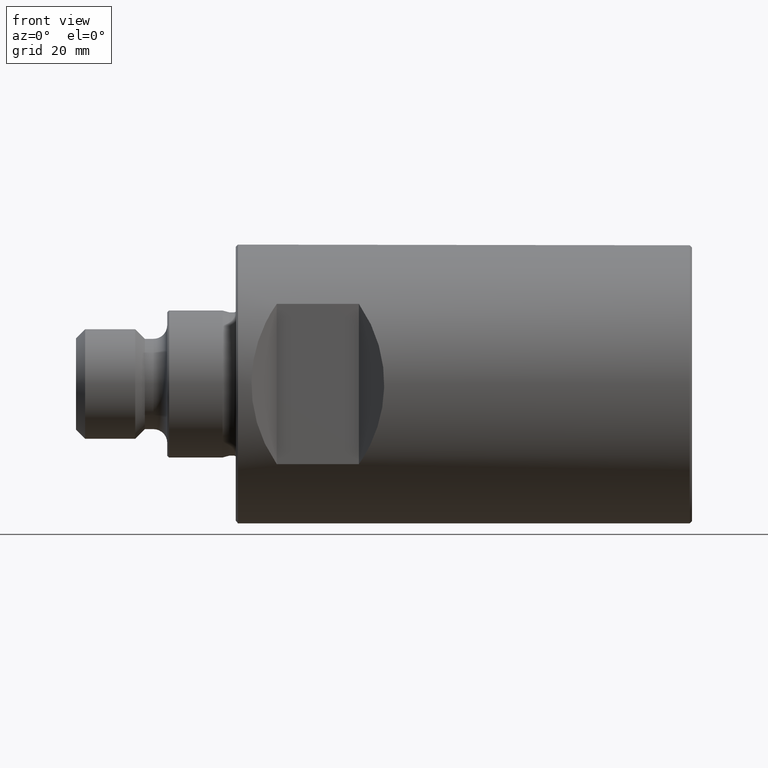
[diagram: clean part render]
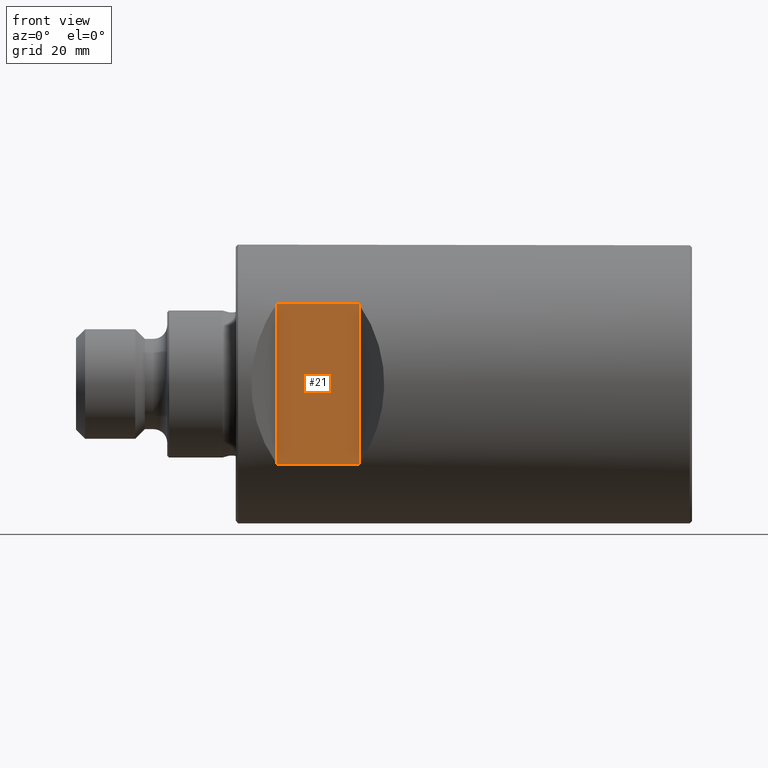
[diagram: same view with one face highlighted and labeled with its STEP entity id]
A machine part, front view. The second image highlights one B-rep face of the part: STEP entity #21.
In plain terms, the highlighted planar face has unit normal (-0, -1, 0).
Its self-contained STEP definition (entity closure, byte-faithful):
#18 = DIRECTION ( 'NONE',  ( -1.927470528863120300E-016, -1.000000000000000000, 0.0000000000000000000 ) ) ;
#21 = ADVANCED_FACE ( 'NONE', ( #429 ), #524, .T. ) ;
#34 = DIRECTION ( 'NONE',  ( 1.000000000000000000, -0.0000000000000000000, -0.0000000000000000000 ) ) ;
#62 = CARTESIAN_POINT ( 'NONE',  ( -91.00000000000000000, -24.99999999999998600, 17.55854492832477800 ) ) ;
#86 = CARTESIAN_POINT ( 'NONE',  ( -73.00000000000001400, -24.99999999999998900, -20.00000000000000000 ) ) ;
#122 = EDGE_CURVE ( 'NONE', #380, #841, #211, .T. ) ;
#156 = DIRECTION ( 'NONE',  ( -0.0000000000000000000, -0.0000000000000000000, 1.000000000000000000 ) ) ;
#174 = CARTESIAN_POINT ( 'NONE',  ( -4.818676322157802300E-015, -25.00000000000000400, 17.55854492832476800 ) ) ;
#188 = LINE ( 'NONE', #174, #833 ) ;
#207 = EDGE_CURVE ( 'NONE', #784, #540, #797, .T. ) ;
#211 = LINE ( 'NONE', #307, #585 ) ;
#302 = ORIENTED_EDGE ( 'NONE', *, *, #329, .F. ) ;
#307 = CARTESIAN_POINT ( 'NONE',  ( -91.00000000000000000, -24.99999999999998600, -20.00000000000000000 ) ) ;
#314 = EDGE_CURVE ( 'NONE', #841, #540, #188, .T. ) ;
#327 = ORIENTED_EDGE ( 'NONE', *, *, #314, .F. ) ;
#329 = EDGE_CURVE ( 'NONE', #784, #380, #422, .T. ) ;
#380 = VERTEX_POINT ( 'NONE', #825 ) ;
#422 = LINE ( 'NONE', #619, #738 ) ;
#429 = FACE_OUTER_BOUND ( 'NONE', #736, .T. ) ;
#496 = ORIENTED_EDGE ( 'NONE', *, *, #207, .T. ) ;
#511 = VECTOR ( 'NONE', #675, 1000.000000000000000 ) ;
#524 = PLANE ( 'NONE',  #837 ) ;
#526 = DIRECTION ( 'NONE',  ( 1.000000000000000000, -1.927470528863120300E-016, 0.0000000000000000000 ) ) ;
#540 = VERTEX_POINT ( 'NONE', #721 ) ;
#541 = DIRECTION ( 'NONE',  ( -1.000000000000000000, 0.0000000000000000000, 0.0000000000000000000 ) ) ;
#585 = VECTOR ( 'NONE', #156, 1000.000000000000000 ) ;
#619 = CARTESIAN_POINT ( 'NONE',  ( -4.818676322157802300E-015, -25.00000000000000400, -17.55854492832476800 ) ) ;
#639 = CARTESIAN_POINT ( 'NONE',  ( -73.00000000000001400, -24.99999999999998900, -17.55854492832478900 ) ) ;
#673 = CARTESIAN_POINT ( 'NONE',  ( -73.00000000000001400, -24.99999999999998900, -20.00000000000000000 ) ) ;
#674 = ORIENTED_EDGE ( 'NONE', *, *, #122, .F. ) ;
#675 = DIRECTION ( 'NONE',  ( -0.0000000000000000000, -0.0000000000000000000, 1.000000000000000000 ) ) ;
#721 = CARTESIAN_POINT ( 'NONE',  ( -73.00000000000001400, -24.99999999999998900, 17.55854492832479300 ) ) ;
#736 = EDGE_LOOP ( 'NONE', ( #496, #327, #674, #302 ) ) ;
#738 = VECTOR ( 'NONE', #541, 1000.000000000000000 ) ;
#784 = VERTEX_POINT ( 'NONE', #639 ) ;
#797 = LINE ( 'NONE', #86, #511 ) ;
#825 = CARTESIAN_POINT ( 'NONE',  ( -91.00000000000000000, -24.99999999999998600, -17.55854492832478200 ) ) ;
#833 = VECTOR ( 'NONE', #34, 1000.000000000000000 ) ;
#837 = AXIS2_PLACEMENT_3D ( 'NONE', #673, #18, #526 ) ;
#841 = VERTEX_POINT ( 'NONE', #62 ) ;